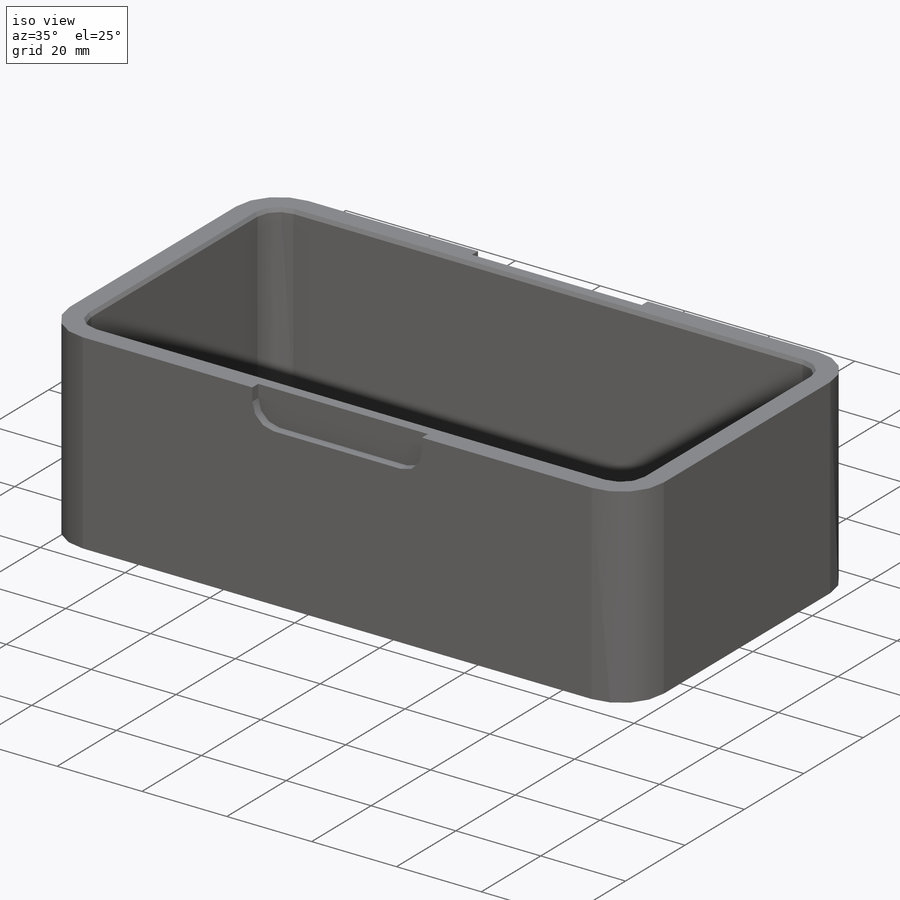
[diagram: iso view]
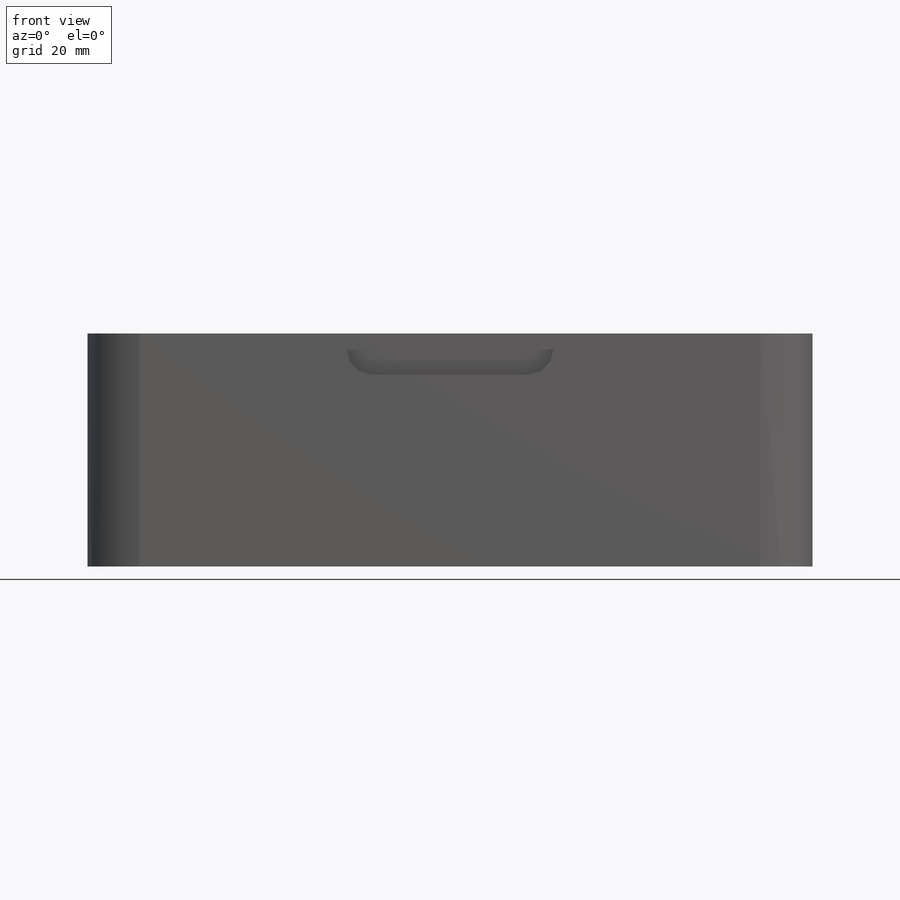
[diagram: front view]
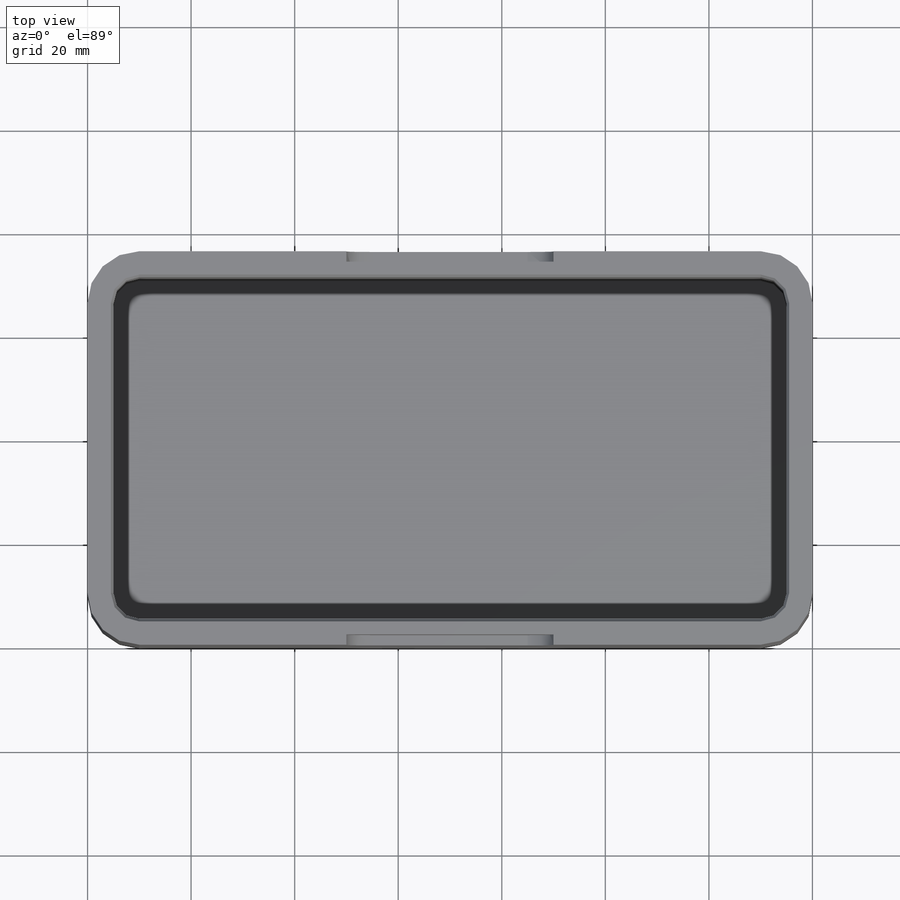
[diagram: top view]
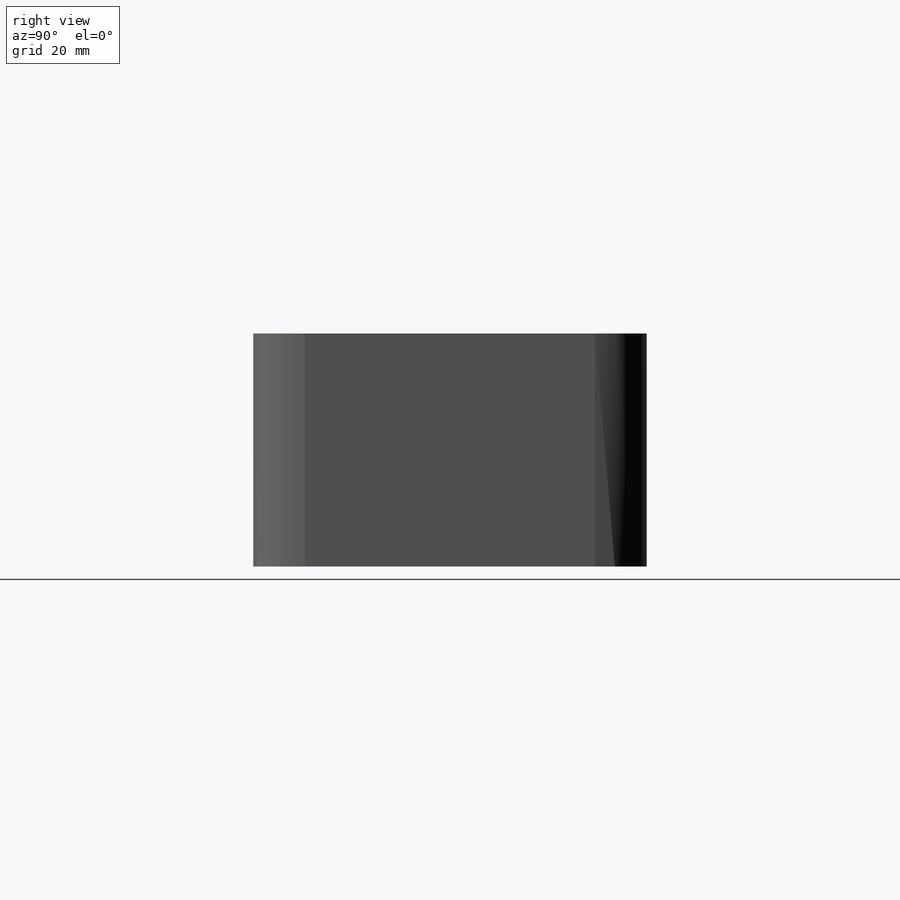
[diagram: right view]
SOLIDWORKS PART (.sldprt)
format: sldprt  version: not decoded by parser v0  size: 251,904 bytes
history: native  units: mm
features: sketch x3, fillet x2, cut_extrude x2, material x1, extrude x1, plane x1, mirror x1, chamfer x1 (+12 scaffold rows collapsed)
feature tree (24):
  scaffold x12  (default folders/planes/origin — collapsed)
  material  "Material <not specified>"
  sketch  "Sketch1"  dims[D1=140.0mm D2=76.0mm]
  extrude  "Boss-Extrude1"  Depth=45mm
  fillet  "Fillet2"  Radius=10mm
  sketch  "Sketch4"  dims[D1=5.0mm]
  cut_extrude  "Cut-Extrude2"  Depth=40mm
  sketch  "Sketch5"  dims[D1=40.0mm D2=8.0mm]
  cut_extrude  "Cut-Extrude3"  Depth=2mm
  fillet  "Fillet3"  Radius=5mm
  plane  "Plane1"
  mirror  "Mirror1"
  chamfer  "Chamfer1"  Distance=0.5mm Angle=60deg
decode coverage: 9 of 10 modeling features carry decoded parameters
note: suppression state not decoded; provenance and decode notes live in map.json
